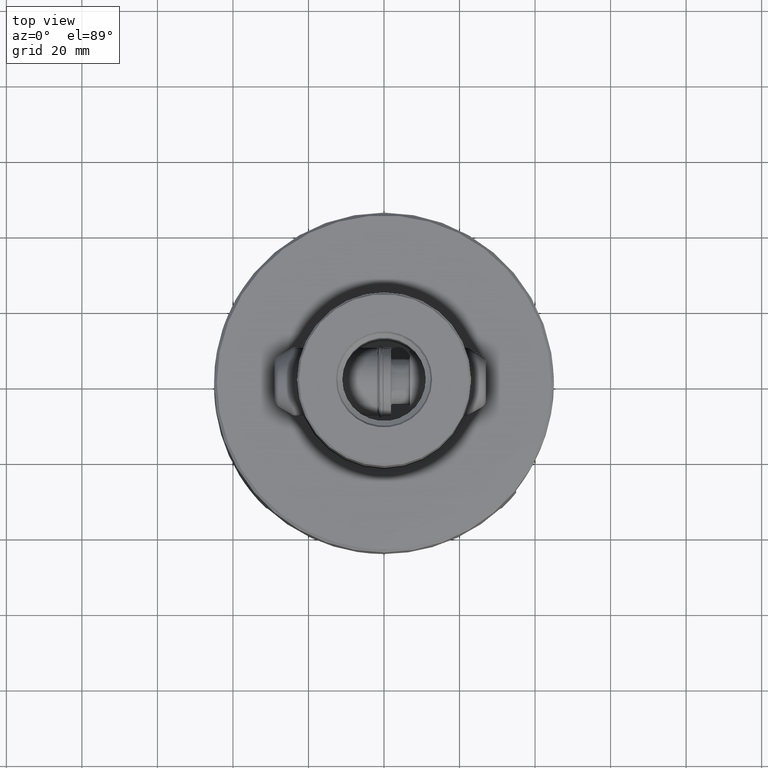
[diagram: clean part render]
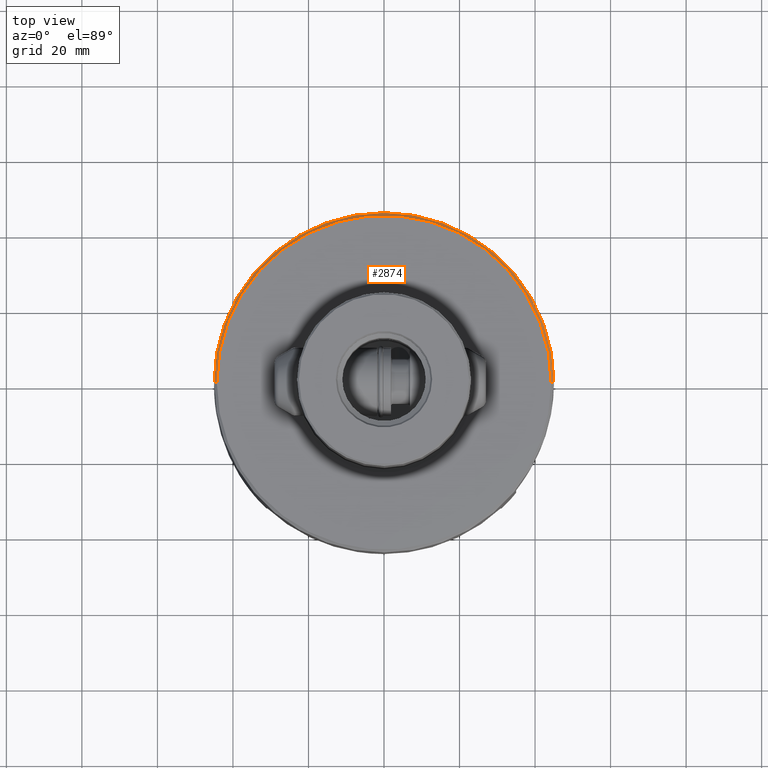
[diagram: same view with one face highlighted and labeled with its STEP entity id]
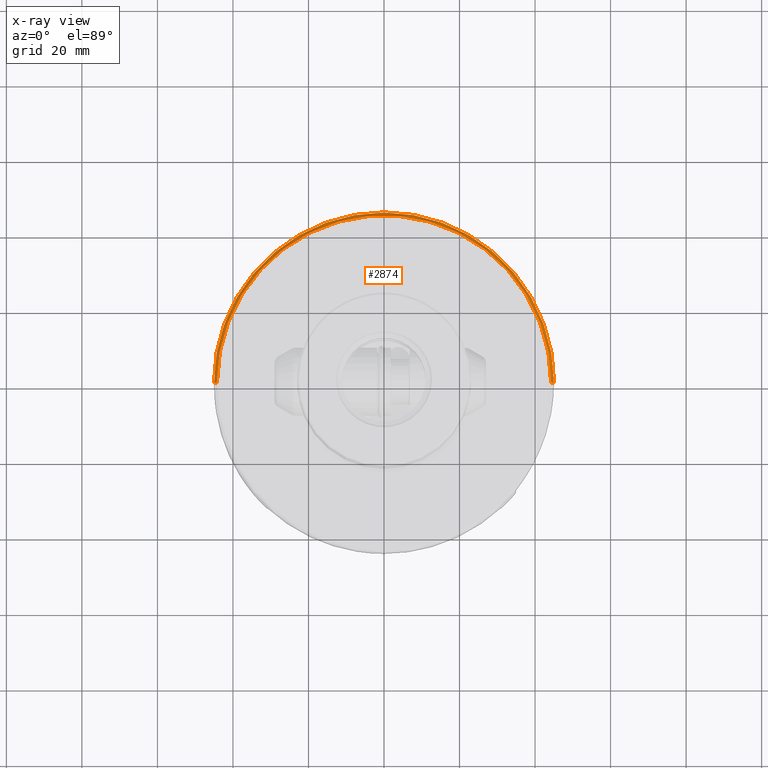
[diagram: x-ray of the same camera — body ghosted, the highlighted face saturated]
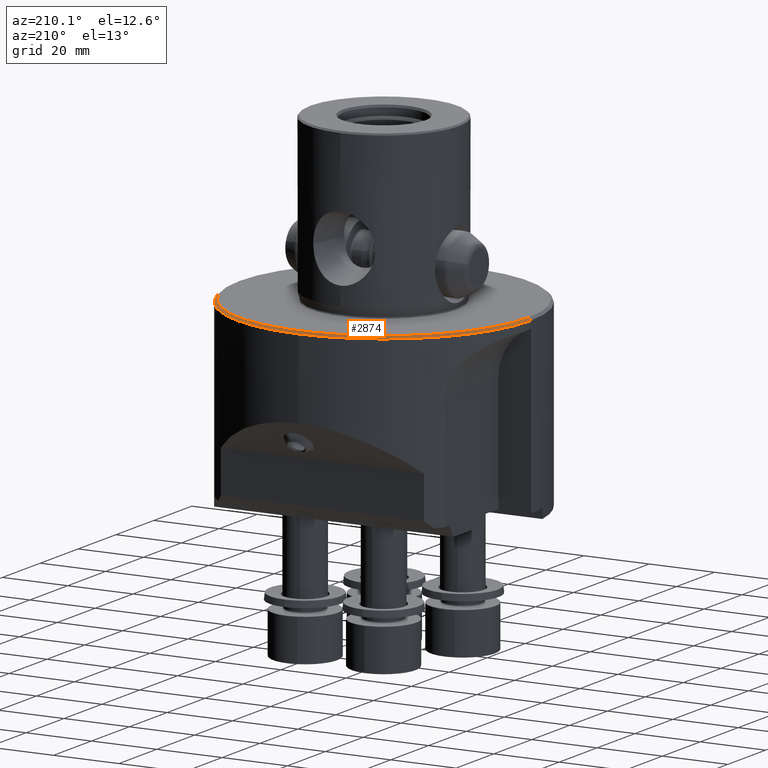
[diagram: same view with one face highlighted and labeled with its STEP entity id]
A machine part, top view. The second image highlights one B-rep face of the part: STEP entity #2874.
The next image is the same camera in x-ray: the body ghosted, the highlighted face saturated — about 0% of this face is hidden behind the body in this view.
A second angle (auxiliary view) of the same face is appended — the face is thin or edge-on in the first view.
In plain terms, the highlighted conical surface has half-angle 45 deg.
Its self-contained STEP definition (entity closure, byte-faithful):
#2350=EDGE_CURVE('NONE',#3692,#5944,#6466,.T.);
#2874=ADVANCED_FACE('NONE',(#7058),#7059,.T.);
#2956=VERTEX_POINT('NONE',#7149);
#3046=EDGE_CURVE('NONE',#3790,#4072,#7248,.T.);
#3220=EDGE_CURVE('NONE',#3790,#2956,#7447,.T.);
#3692=VERTEX_POINT('NONE',#7981);
#3790=VERTEX_POINT('NONE',#8090);
#4072=VERTEX_POINT('NONE',#8414);
#5510=EDGE_CURVE('NONE',#2956,#3692,#10032,.T.);
#5626=EDGE_CURVE('NONE',#5944,#4072,#10155,.T.);
#5944=VERTEX_POINT('NONE',#10520);
#6466=CIRCLE('',#11205,45.0);
#7058=FACE_OUTER_BOUND('',#12030,.T.);
#7059=CONICAL_SURFACE('',#12031,45.15,0.785398163397445);
#7149=CARTESIAN_POINT('',(-44.275,1.06293508269815E-013,0.0));
#7248=LINE('',#12285,#12286);
#7447=CIRCLE('',#12552,44.275);
#7981=CARTESIAN_POINT('',(-45.0,1.0715671514179E-013,-0.724999999999968));
#8090=CARTESIAN_POINT('',(44.275,-1.0082717165794E-013,0.0));
#8414=CARTESIAN_POINT('',(45.0,-1.01645986549589E-013,-0.724999999999968));
#10032=LINE('',#16754,#16755);
#10155=CIRCLE('',#16933,45.0);
#10520=CARTESIAN_POINT('',(0.0,45.0,-0.724999999999968));
#11205=AXIS2_PLACEMENT_3D('',#18077,#18078,#18079);
#12030=EDGE_LOOP('',(#18826,#18827,#18828,#18829,#18830));
#12031=AXIS2_PLACEMENT_3D('',#18831,#18832,#18833);
#12285=CARTESIAN_POINT('',(45.15,-1.01984806504755E-013,-0.874999999999966));
#12286=VECTOR('',#19057,1000.0);
#12552=AXIS2_PLACEMENT_3D('',#19317,#19318,#19319);
#16754=CARTESIAN_POINT('',(-45.15,1.07513904192263E-013,-0.874999999999966));
#16755=VECTOR('',#22606,1000.0);
#16933=AXIS2_PLACEMENT_3D('',#22730,#22731,#22732);
#18077=CARTESIAN_POINT('',(0.0,0.0,-0.724999999999968));
#18078=DIRECTION('',(0.0,0.0,-1.0));
#18079=DIRECTION('',(0.0,-1.0,0.0));
#18826=ORIENTED_EDGE('',*,*,#3220,.F.);
#18827=ORIENTED_EDGE('',*,*,#3046,.T.);
#18828=ORIENTED_EDGE('',*,*,#5626,.F.);
#18829=ORIENTED_EDGE('',*,*,#2350,.F.);
#18830=ORIENTED_EDGE('',*,*,#5510,.F.);
#18831=CARTESIAN_POINT('',(0.0,0.0,-0.874999999999966));
#18832=DIRECTION('',(-0.0,-0.0,-1.0));
#18833=DIRECTION('',(-1.0,2.38126033648423E-015,0.0));
#19057=DIRECTION('',(0.707106781186545,-1.59721258599136E-015,-0.70710678118655));
#19317=CARTESIAN_POINT('',(0.0,0.0,0.0));
#19318=DIRECTION('',(0.0,-0.0,1.0));
#19319=DIRECTION('',(0.0,1.0,0.0));
#22606=DIRECTION('',(-0.707106781186545,1.68380533169855E-015,-0.70710678118655));
#22730=CARTESIAN_POINT('',(0.0,0.0,-0.724999999999968));
#22731=DIRECTION('',(0.0,0.0,-1.0));
#22732=DIRECTION('',(0.0,-1.0,0.0));